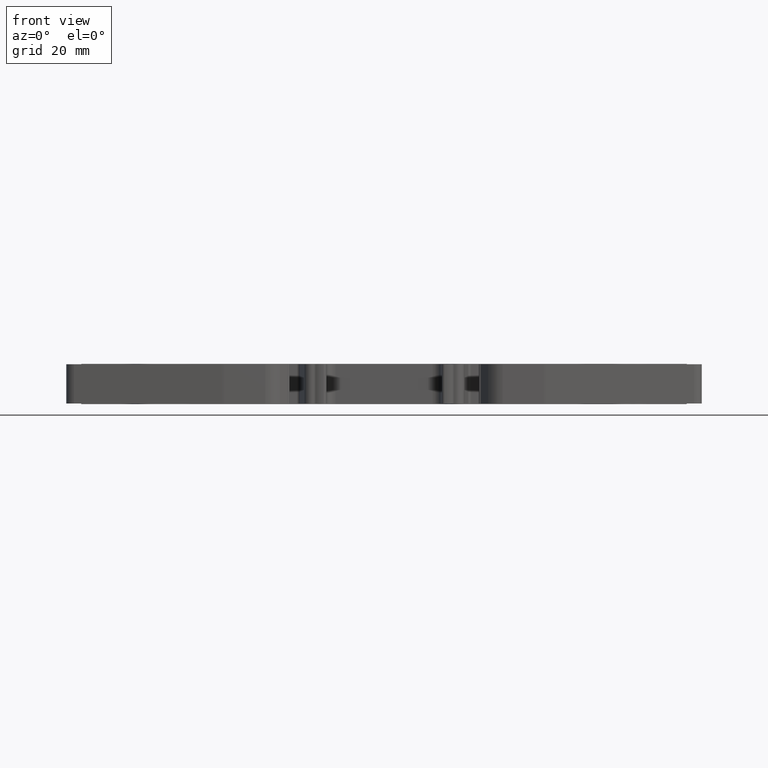
[diagram: clean part render]
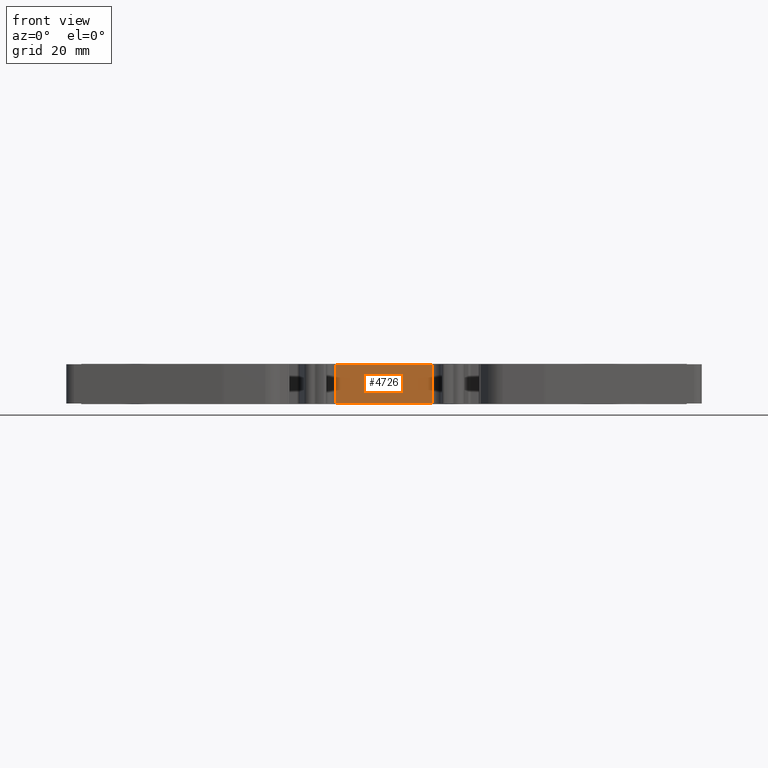
[diagram: same view with one face highlighted and labeled with its STEP entity id]
A machine part, front view. The second image highlights one B-rep face of the part: STEP entity #4726.
In plain terms, the highlighted planar face has unit normal (0, 1, 0).
Its self-contained STEP definition (entity closure, byte-faithful):
#580 = VERTEX_POINT ( 'NONE', #21511 ) ;
#634 = VERTEX_POINT ( 'NONE', #21492 ) ;
#3904 = LINE ( 'NONE', #3923, #22398 ) ;
#3908 = DIRECTION ( 'NONE',  ( -1.000000000000000000, 0.0000000000000000000, 0.0000000000000000000 ) ) ;
#3923 = CARTESIAN_POINT ( 'NONE',  ( 250.5337904371309900, 20.88144492884495000, -0.3500000000000000300 ) ) ;
#4242 = FACE_OUTER_BOUND ( 'NONE', #21358, .T. ) ;
#4244 = PLANE ( 'NONE',  #22630 ) ;
#4253 = DIRECTION ( 'NONE',  ( 0.0000000000000000000, 0.0000000000000000000, 1.000000000000000000 ) ) ;
#4256 = DIRECTION ( 'NONE',  ( 0.0000000000000000000, 1.000000000000000000, 0.0000000000000000000 ) ) ;
#4266 = CARTESIAN_POINT ( 'NONE',  ( 250.5337904371309900, 20.88144492884495000, 2.899999999999999900 ) ) ;
#4726 = ADVANCED_FACE ( 'NONE', ( #4242 ), #4244, .F. ) ;
#5143 = EDGE_CURVE ( 'NONE', #634, #580, #3904, .T. ) ;
#5936 = EDGE_CURVE ( 'NONE', #7565, #580, #15660, .T. ) ;
#5940 = EDGE_CURVE ( 'NONE', #7559, #634, #15691, .T. ) ;
#6139 = EDGE_CURVE ( 'NONE', #7565, #7559, #14590, .T. ) ;
#7559 = VERTEX_POINT ( 'NONE', #13876 ) ;
#7565 = VERTEX_POINT ( 'NONE', #13837 ) ;
#12505 = VECTOR ( 'NONE', #14569, 1000.000000000000000 ) ;
#13422 = VECTOR ( 'NONE', #15714, 1000.000000000000000 ) ;
#13426 = VECTOR ( 'NONE', #15715, 1000.000000000000000 ) ;
#13837 = CARTESIAN_POINT ( 'NONE',  ( 250.5337904371309900, 20.88144492884495000, 6.200000000000000200 ) ) ;
#13876 = CARTESIAN_POINT ( 'NONE',  ( 266.7213291324815100, 20.88144492884495000, 6.200000000000000200 ) ) ;
#14554 = CARTESIAN_POINT ( 'NONE',  ( 250.5337904371309900, 20.88144492884495000, 6.200000000000000200 ) ) ;
#14569 = DIRECTION ( 'NONE',  ( 1.000000000000000000, 0.0000000000000000000, 0.0000000000000000000 ) ) ;
#14590 = LINE ( 'NONE', #14554, #12505 ) ;
#15660 = LINE ( 'NONE', #15698, #13422 ) ;
#15691 = LINE ( 'NONE', #15700, #13426 ) ;
#15698 = CARTESIAN_POINT ( 'NONE',  ( 250.5337904371309900, 20.88144492884495000, 2.899999999999999900 ) ) ;
#15700 = CARTESIAN_POINT ( 'NONE',  ( 266.7213291324815100, 20.88144492884495000, 2.899999999999999900 ) ) ;
#15714 = DIRECTION ( 'NONE',  ( 0.0000000000000000000, 0.0000000000000000000, -1.000000000000000000 ) ) ;
#15715 = DIRECTION ( 'NONE',  ( 0.0000000000000000000, 0.0000000000000000000, -1.000000000000000000 ) ) ;
#18961 = ORIENTED_EDGE ( 'NONE', *, *, #5143, .F. ) ;
#18996 = ORIENTED_EDGE ( 'NONE', *, *, #5940, .F. ) ;
#18998 = ORIENTED_EDGE ( 'NONE', *, *, #6139, .F. ) ;
#18999 = ORIENTED_EDGE ( 'NONE', *, *, #5936, .T. ) ;
#21358 = EDGE_LOOP ( 'NONE', ( #18961, #18996, #18998, #18999 ) ) ;
#21492 = CARTESIAN_POINT ( 'NONE',  ( 266.7213291324815100, 20.88144492884495000, -0.3500000000000000300 ) ) ;
#21511 = CARTESIAN_POINT ( 'NONE',  ( 250.5337904371309900, 20.88144492884495000, -0.3500000000000000300 ) ) ;
#22398 = VECTOR ( 'NONE', #3908, 1000.000000000000000 ) ;
#22630 = AXIS2_PLACEMENT_3D ( 'NONE', #4266, #4256, #4253 ) ;